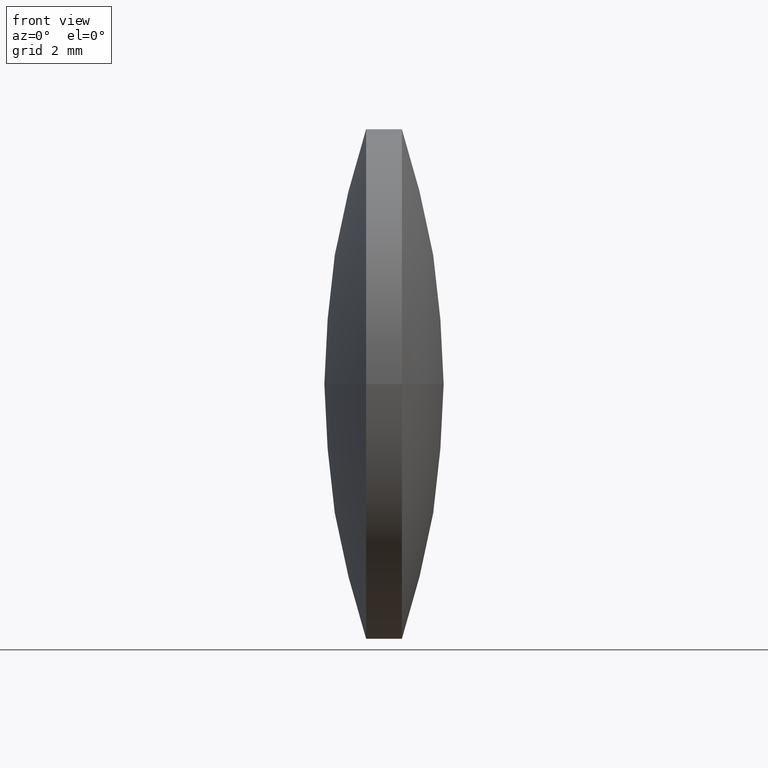
[diagram: clean part render]
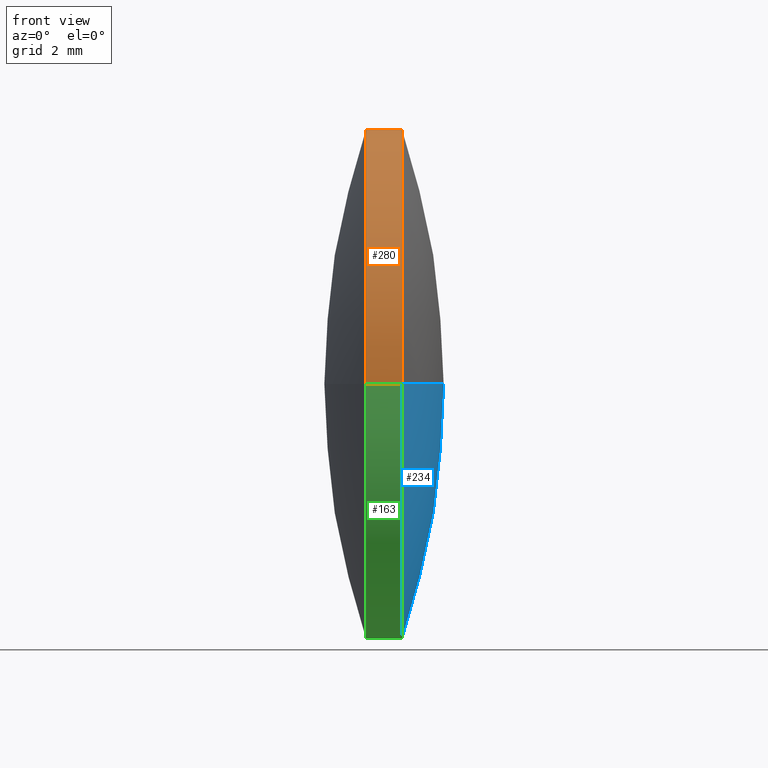
[diagram: same view with three faces highlighted in distinct colors, each labeled with its STEP entity id]
A machine part, front view with three faces highlighted in distinct colors.
Their STEP definitions:

[orange] entity #280 — the highlighted cylindrical surface (partial cylindrical patch) has radius 6.425 mm, axis along (-1, -0, -0).
#1 = DIRECTION ( 'NONE',  ( 2.159965328289782600E-015, -1.000000000000000000, 0.0000000000000000000 ) ) ;
#4 = CIRCLE ( 'NONE', #240, 6.425004895241819700 ) ;
#10 = DIRECTION ( 'NONE',  ( -1.000000000000000000, -1.907979147667159300E-015, -0.0000000000000000000 ) ) ;
#26 = DIRECTION ( 'NONE',  ( -1.000000000000000000, -1.907979147667159300E-015, -0.0000000000000000000 ) ) ;
#31 = EDGE_LOOP ( 'NONE', ( #143, #229, #64, #168 ) ) ;
#33 = EDGE_CURVE ( 'NONE', #37, #200, #206, .T. ) ;
#36 = CYLINDRICAL_SURFACE ( 'NONE', #87, 6.425004895241819700 ) ;
#37 = VERTEX_POINT ( 'NONE', #120 ) ;
#52 = CARTESIAN_POINT ( 'NONE',  ( 41.05514945779384600, 24.59517828044031500, 0.0000000000000000000 ) ) ;
#64 = ORIENTED_EDGE ( 'NONE', *, *, #33, .F. ) ;
#65 = AXIS2_PLACEMENT_3D ( 'NONE', #166, #103, #124 ) ;
#71 = LINE ( 'NONE', #110, #228 ) ;
#83 = DIRECTION ( 'NONE',  ( -1.000000000000000000, -1.907979147667159300E-015, -0.0000000000000000000 ) ) ;
#87 = AXIS2_PLACEMENT_3D ( 'NONE', #52, #10, #195 ) ;
#100 = CARTESIAN_POINT ( 'NONE',  ( 44.18971009732074900, 18.17017338519853100, 0.0000000000000000000 ) ) ;
#103 = DIRECTION ( 'NONE',  ( -1.000000000000000000, -1.907979147667159300E-015, -0.0000000000000000000 ) ) ;
#110 = CARTESIAN_POINT ( 'NONE',  ( 41.05514945779386000, 18.17017338519849500, 0.0000000000000000000 ) ) ;
#120 = CARTESIAN_POINT ( 'NONE',  ( 43.28971009732074300, 18.17017338519846000, -7.868361679463981300E-016 ) ) ;
#124 = DIRECTION ( 'NONE',  ( 2.159965328289781400E-015, -1.000000000000000000, 0.0000000000000000000 ) ) ;
#132 = VERTEX_POINT ( 'NONE', #100 ) ;
#143 = ORIENTED_EDGE ( 'NONE', *, *, #182, .T. ) ;
#166 = CARTESIAN_POINT ( 'NONE',  ( 43.28971009732072900, 24.59517828044031900, 0.0000000000000000000 ) ) ;
#168 = ORIENTED_EDGE ( 'NONE', *, *, #275, .F. ) ;
#178 = VERTEX_POINT ( 'NONE', #189 ) ;
#182 = EDGE_CURVE ( 'NONE', #132, #178, #4, .T. ) ;
#189 = CARTESIAN_POINT ( 'NONE',  ( 44.18971009732072000, 31.02018317568213500, 7.868361679463932900E-016 ) ) ;
#195 = DIRECTION ( 'NONE',  ( 2.159965328289782600E-015, -1.000000000000000000, 0.0000000000000000000 ) ) ;
#200 = VERTEX_POINT ( 'NONE', #235 ) ;
#206 = CIRCLE ( 'NONE', #65, 6.425004895241823300 ) ;
#213 = FACE_OUTER_BOUND ( 'NONE', #31, .T. ) ;
#221 = VECTOR ( 'NONE', #83, 1000.000000000000000 ) ;
#228 = VECTOR ( 'NONE', #294, 1000.000000000000000 ) ;
#229 = ORIENTED_EDGE ( 'NONE', *, *, #255, .T. ) ;
#235 = CARTESIAN_POINT ( 'NONE',  ( 43.28971009732071500, 31.02018317568214900, 0.0000000000000000000 ) ) ;
#240 = AXIS2_PLACEMENT_3D ( 'NONE', #264, #26, #1 ) ;
#242 = LINE ( 'NONE', #273, #221 ) ;
#255 = EDGE_CURVE ( 'NONE', #178, #200, #242, .T. ) ;
#264 = CARTESIAN_POINT ( 'NONE',  ( 44.18971009732073400, 24.59517828044032200, 0.0000000000000000000 ) ) ;
#273 = CARTESIAN_POINT ( 'NONE',  ( 41.05514945779383100, 31.02018317568213500, 7.868361679463971400E-016 ) ) ;
#275 = EDGE_CURVE ( 'NONE', #132, #37, #71, .T. ) ;
#280 = ADVANCED_FACE ( 'NONE', ( #213 ), #36, .T. ) ;
#294 = DIRECTION ( 'NONE',  ( -1.000000000000000000, -1.907979147667159300E-015, -0.0000000000000000000 ) ) ;

[blue] entity #234 — the highlighted spherical surface has radius 20.1825 mm.
#9 = EDGE_CURVE ( 'NONE', #67, #178, #162, .T. ) ;
#17 = EDGE_CURVE ( 'NONE', #178, #132, #92, .T. ) ;
#24 = AXIS2_PLACEMENT_3D ( 'NONE', #258, #96, #72 ) ;
#45 = AXIS2_PLACEMENT_3D ( 'NONE', #236, #261, #208 ) ;
#53 = DIRECTION ( 'NONE',  ( -0.0000000000000000000, 0.0000000000000000000, 1.000000000000000000 ) ) ;
#56 = CARTESIAN_POINT ( 'NONE',  ( 25.05725730939899500, 24.59517828044030500, 0.0000000000000000000 ) ) ;
#67 = VERTEX_POINT ( 'NONE', #185 ) ;
#72 = DIRECTION ( 'NONE',  ( 0.0000000000000000000, -1.000000000000000000, -1.224646799147353200E-016 ) ) ;
#81 = EDGE_CURVE ( 'NONE', #67, #132, #167, .T. ) ;
#92 = CIRCLE ( 'NONE', #45, 6.425004895241819700 ) ;
#96 = DIRECTION ( 'NONE',  ( 2.336600556030481800E-031, -1.224646799147353200E-016, 1.000000000000000000 ) ) ;
#97 = AXIS2_PLACEMENT_3D ( 'NONE', #287, #284, #169 ) ;
#99 = FACE_OUTER_BOUND ( 'NONE', #117, .T. ) ;
#100 = CARTESIAN_POINT ( 'NONE',  ( 44.18971009732074900, 18.17017338519853100, 0.0000000000000000000 ) ) ;
#117 = EDGE_LOOP ( 'NONE', ( #214, #286, #268 ) ) ;
#132 = VERTEX_POINT ( 'NONE', #100 ) ;
#150 = DIRECTION ( 'NONE',  ( 1.890945324480586900E-015, -1.000000000000000000, 0.0000000000000000000 ) ) ;
#162 = CIRCLE ( 'NONE', #24, 20.18245370577956200 ) ;
#167 = CIRCLE ( 'NONE', #97, 20.18245370577956200 ) ;
#169 = DIRECTION ( 'NONE',  ( -1.000000000000000000, 0.0000000000000000000, 0.0000000000000000000 ) ) ;
#173 = SPHERICAL_SURFACE ( 'NONE', #203, 20.18245370577956200 ) ;
#178 = VERTEX_POINT ( 'NONE', #189 ) ;
#185 = CARTESIAN_POINT ( 'NONE',  ( 45.23971101517855700, 24.59517828044034400, 0.0000000000000000000 ) ) ;
#189 = CARTESIAN_POINT ( 'NONE',  ( 44.18971009732072000, 31.02018317568213500, 7.868361679463932900E-016 ) ) ;
#203 = AXIS2_PLACEMENT_3D ( 'NONE', #56, #53, #150 ) ;
#208 = DIRECTION ( 'NONE',  ( 2.159965328289782600E-015, -1.000000000000000000, 0.0000000000000000000 ) ) ;
#214 = ORIENTED_EDGE ( 'NONE', *, *, #9, .F. ) ;
#234 = ADVANCED_FACE ( 'NONE', ( #99 ), #173, .T. ) ;
#236 = CARTESIAN_POINT ( 'NONE',  ( 44.18971009732073400, 24.59517828044032200, 0.0000000000000000000 ) ) ;
#258 = CARTESIAN_POINT ( 'NONE',  ( 25.05725730939899500, 24.59517828044030500, 0.0000000000000000000 ) ) ;
#261 = DIRECTION ( 'NONE',  ( -1.000000000000000000, -1.907979147667159300E-015, -0.0000000000000000000 ) ) ;
#268 = ORIENTED_EDGE ( 'NONE', *, *, #17, .F. ) ;
#284 = DIRECTION ( 'NONE',  ( 0.0000000000000000000, 0.0000000000000000000, -1.000000000000000000 ) ) ;
#286 = ORIENTED_EDGE ( 'NONE', *, *, #81, .T. ) ;
#287 = CARTESIAN_POINT ( 'NONE',  ( 25.05725730939899500, 24.59517828044030500, 0.0000000000000000000 ) ) ;

[green] entity #163 — the highlighted cylindrical surface (partial cylindrical patch) has radius 6.425 mm, axis along (-1, -0, -0).
#11 = FACE_OUTER_BOUND ( 'NONE', #21, .T. ) ;
#17 = EDGE_CURVE ( 'NONE', #178, #132, #92, .T. ) ;
#21 = EDGE_LOOP ( 'NONE', ( #136, #76, #232, #43 ) ) ;
#37 = VERTEX_POINT ( 'NONE', #120 ) ;
#43 = ORIENTED_EDGE ( 'NONE', *, *, #246, .F. ) ;
#45 = AXIS2_PLACEMENT_3D ( 'NONE', #236, #261, #208 ) ;
#71 = LINE ( 'NONE', #110, #228 ) ;
#74 = DIRECTION ( 'NONE',  ( -1.000000000000000000, -1.907979147667159300E-015, -0.0000000000000000000 ) ) ;
#76 = ORIENTED_EDGE ( 'NONE', *, *, #17, .T. ) ;
#83 = DIRECTION ( 'NONE',  ( -1.000000000000000000, -1.907979147667159300E-015, -0.0000000000000000000 ) ) ;
#92 = CIRCLE ( 'NONE', #45, 6.425004895241819700 ) ;
#100 = CARTESIAN_POINT ( 'NONE',  ( 44.18971009732074900, 18.17017338519853100, 0.0000000000000000000 ) ) ;
#107 = DIRECTION ( 'NONE',  ( -1.000000000000000000, -1.907979147667159300E-015, -0.0000000000000000000 ) ) ;
#110 = CARTESIAN_POINT ( 'NONE',  ( 41.05514945779386000, 18.17017338519849500, 0.0000000000000000000 ) ) ;
#113 = CIRCLE ( 'NONE', #220, 6.425004895241823300 ) ;
#120 = CARTESIAN_POINT ( 'NONE',  ( 43.28971009732074300, 18.17017338519846000, -7.868361679463981300E-016 ) ) ;
#125 = CARTESIAN_POINT ( 'NONE',  ( 43.28971009732072900, 24.59517828044031900, 0.0000000000000000000 ) ) ;
#132 = VERTEX_POINT ( 'NONE', #100 ) ;
#136 = ORIENTED_EDGE ( 'NONE', *, *, #255, .F. ) ;
#140 = DIRECTION ( 'NONE',  ( 2.159965328289782600E-015, -1.000000000000000000, 0.0000000000000000000 ) ) ;
#163 = ADVANCED_FACE ( 'NONE', ( #11 ), #296, .T. ) ;
#178 = VERTEX_POINT ( 'NONE', #189 ) ;
#189 = CARTESIAN_POINT ( 'NONE',  ( 44.18971009732072000, 31.02018317568213500, 7.868361679463932900E-016 ) ) ;
#200 = VERTEX_POINT ( 'NONE', #235 ) ;
#208 = DIRECTION ( 'NONE',  ( 2.159965328289782600E-015, -1.000000000000000000, 0.0000000000000000000 ) ) ;
#209 = AXIS2_PLACEMENT_3D ( 'NONE', #282, #74, #140 ) ;
#220 = AXIS2_PLACEMENT_3D ( 'NONE', #125, #107, #290 ) ;
#221 = VECTOR ( 'NONE', #83, 1000.000000000000000 ) ;
#228 = VECTOR ( 'NONE', #294, 1000.000000000000000 ) ;
#232 = ORIENTED_EDGE ( 'NONE', *, *, #275, .T. ) ;
#235 = CARTESIAN_POINT ( 'NONE',  ( 43.28971009732071500, 31.02018317568214900, 0.0000000000000000000 ) ) ;
#236 = CARTESIAN_POINT ( 'NONE',  ( 44.18971009732073400, 24.59517828044032200, 0.0000000000000000000 ) ) ;
#242 = LINE ( 'NONE', #273, #221 ) ;
#246 = EDGE_CURVE ( 'NONE', #200, #37, #113, .T. ) ;
#255 = EDGE_CURVE ( 'NONE', #178, #200, #242, .T. ) ;
#261 = DIRECTION ( 'NONE',  ( -1.000000000000000000, -1.907979147667159300E-015, -0.0000000000000000000 ) ) ;
#273 = CARTESIAN_POINT ( 'NONE',  ( 41.05514945779383100, 31.02018317568213500, 7.868361679463971400E-016 ) ) ;
#275 = EDGE_CURVE ( 'NONE', #132, #37, #71, .T. ) ;
#282 = CARTESIAN_POINT ( 'NONE',  ( 41.05514945779384600, 24.59517828044031500, 0.0000000000000000000 ) ) ;
#290 = DIRECTION ( 'NONE',  ( 2.159965328289781400E-015, -1.000000000000000000, 0.0000000000000000000 ) ) ;
#294 = DIRECTION ( 'NONE',  ( -1.000000000000000000, -1.907979147667159300E-015, -0.0000000000000000000 ) ) ;
#296 = CYLINDRICAL_SURFACE ( 'NONE', #209, 6.425004895241819700 ) ;